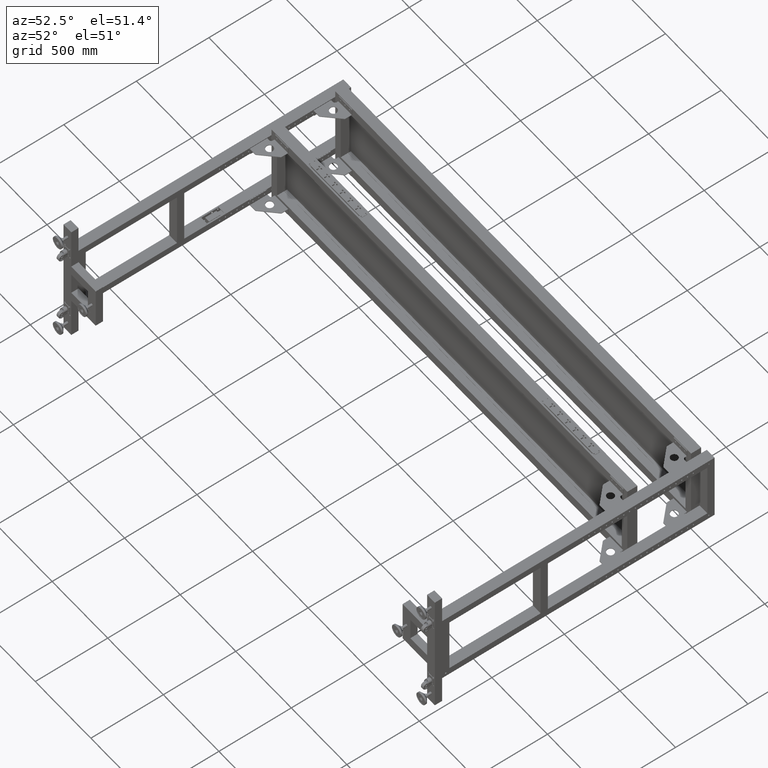
[diagram: clean part render]
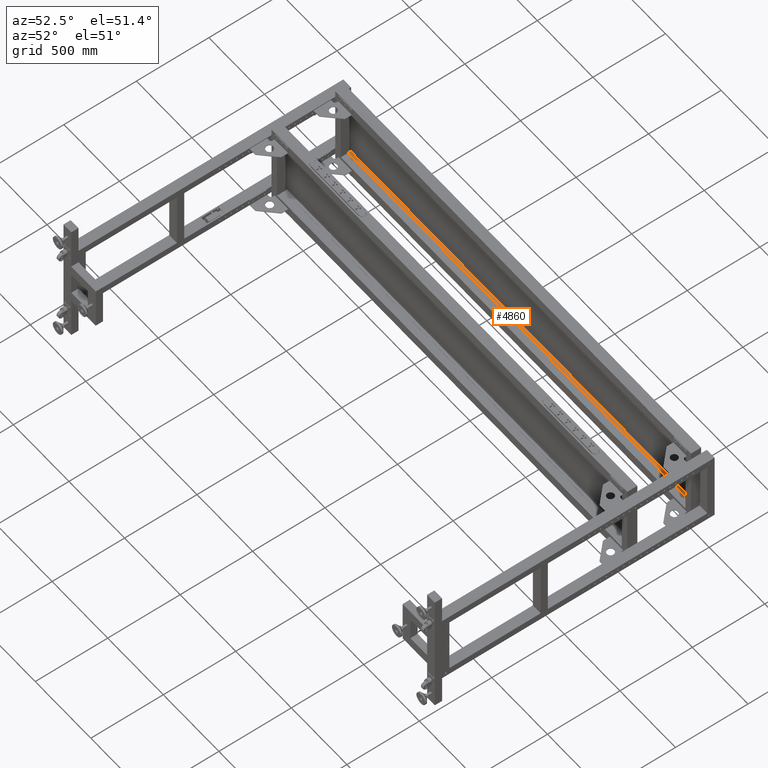
[diagram: same view with one face highlighted and labeled with its STEP entity id]
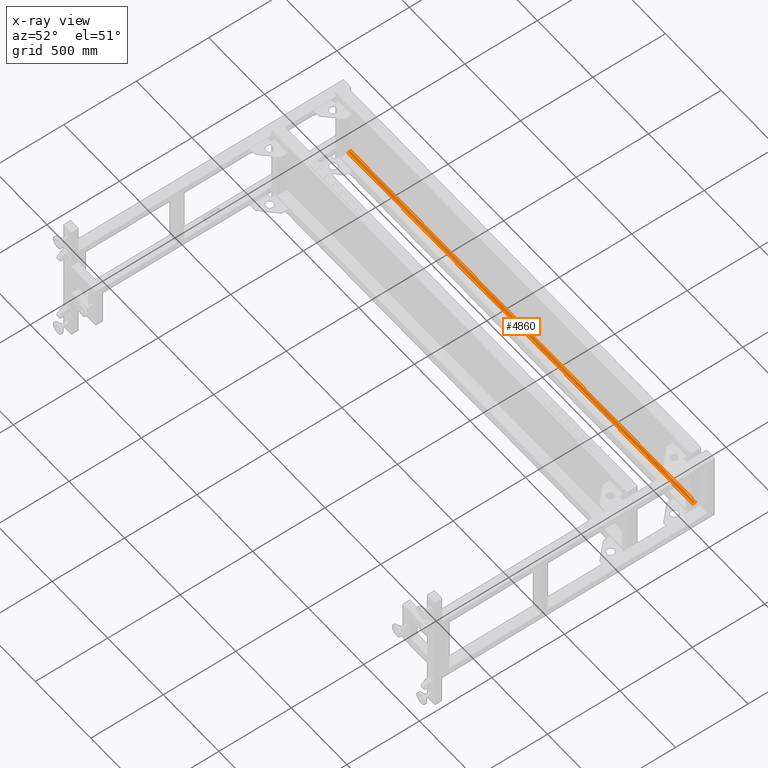
[diagram: x-ray of the same camera — body ghosted, the highlighted face saturated]
A machine part, auxiliary view. The second image highlights one B-rep face of the part: STEP entity #4860.
The next image is the same camera in x-ray: the body ghosted, the highlighted face saturated — about 3% of this face is hidden behind the body in this view.
In plain terms, the highlighted planar face has unit normal (0, -0, 1).
Its self-contained STEP definition (entity closure, byte-faithful):
#4860 = ADVANCED_FACE ( 'NONE', ( #32879 ), #57835, .T. ) ;
#8563 = VERTEX_POINT ( 'NONE', #75983 ) ;
#9241 = VECTOR ( 'NONE', #17798, 1000.000000000000000 ) ;
#17088 = EDGE_CURVE ( 'NONE', #22307, #81006, #74465, .T. ) ;
#17798 = DIRECTION ( 'NONE',  ( 4.543257172554223644E-16, -1.000000000000000000, -4.000602769257180823E-15 ) ) ;
#20623 = CARTESIAN_POINT ( 'NONE',  ( 681.8275125628146043, 995.4410804020143360, -228.4999999999988347 ) ) ;
#21415 = CARTESIAN_POINT ( 'NONE',  ( 1880.256801884696642, 995.4310804020143451, -228.4999999999988347 ) ) ;
#21856 = VECTOR ( 'NONE', #69138, 1000.000000000000000 ) ;
#22307 = VERTEX_POINT ( 'NONE', #44829 ) ;
#24213 = LINE ( 'NONE', #42646, #50067 ) ;
#24246 = ORIENTED_EDGE ( 'NONE', *, *, #17088, .T. ) ;
#26142 = CARTESIAN_POINT ( 'NONE',  ( -1216.601776759067889, 995.4410804020137675, -228.4999999999988347 ) ) ;
#28437 = CARTESIAN_POINT ( 'NONE',  ( -1216.601776759067889, 976.9410804020130854, -228.4999999999988631 ) ) ;
#29142 = DIRECTION ( 'NONE',  ( -1.000000000000000000, -4.311960709090649200E-16, 9.253252722517677530E-32 ) ) ;
#30263 = VERTEX_POINT ( 'NONE', #21415 ) ;
#31335 = ORIENTED_EDGE ( 'NONE', *, *, #73637, .F. ) ;
#32063 = ORIENTED_EDGE ( 'NONE', *, *, #74963, .T. ) ;
#32879 = FACE_OUTER_BOUND ( 'NONE', #76057, .T. ) ;
#38627 = DIRECTION ( 'NONE',  ( 1.817576722596797692E-30, -4.000602769257180823E-15, 1.000000000000000000 ) ) ;
#42646 = CARTESIAN_POINT ( 'NONE',  ( 1881.827512562814263, 995.4310804020143451, -228.4999999999988347 ) ) ;
#43562 = LINE ( 'NONE', #44389, #9241 ) ;
#44389 = CARTESIAN_POINT ( 'NONE',  ( 1880.256801884696642, 995.4410804020147907, -228.4999999999988347 ) ) ;
#44829 = CARTESIAN_POINT ( 'NONE',  ( -1216.601776759067889, 995.4310804020132082, -228.4999999999988347 ) ) ;
#45758 = ORIENTED_EDGE ( 'NONE', *, *, #60333, .T. ) ;
#46727 = VECTOR ( 'NONE', #71410, 1000.000000000000000 ) ;
#50067 = VECTOR ( 'NONE', #29142, 1000.000000000000000 ) ;
#50108 = CARTESIAN_POINT ( 'NONE',  ( 1881.827512562814263, 976.9410804020142223, -228.4999999999988631 ) ) ;
#57835 = PLANE ( 'NONE',  #66111 ) ;
#60333 = EDGE_CURVE ( 'NONE', #81006, #8563, #62435, .T. ) ;
#62435 = LINE ( 'NONE', #50108, #46727 ) ;
#66111 = AXIS2_PLACEMENT_3D ( 'NONE', #20623, #38627, #70562 ) ;
#69138 = DIRECTION ( 'NONE',  ( 0.000000000000000000, -1.000000000000000000, -4.000602769257180823E-15 ) ) ;
#70562 = DIRECTION ( 'NONE',  ( -1.000000000000000000, -4.543257172554223644E-16, 0.000000000000000000 ) ) ;
#71410 = DIRECTION ( 'NONE',  ( 1.000000000000000000, 4.543257172554223644E-16, 0.000000000000000000 ) ) ;
#73637 = EDGE_CURVE ( 'NONE', #30263, #8563, #43562, .T. ) ;
#74465 = LINE ( 'NONE', #26142, #21856 ) ;
#74963 = EDGE_CURVE ( 'NONE', #30263, #22307, #24213, .T. ) ;
#75983 = CARTESIAN_POINT ( 'NONE',  ( 1880.256801884696642, 976.9410804020142223, -228.4999999999988631 ) ) ;
#76057 = EDGE_LOOP ( 'NONE', ( #32063, #24246, #45758, #31335 ) ) ;
#81006 = VERTEX_POINT ( 'NONE', #28437 ) ;